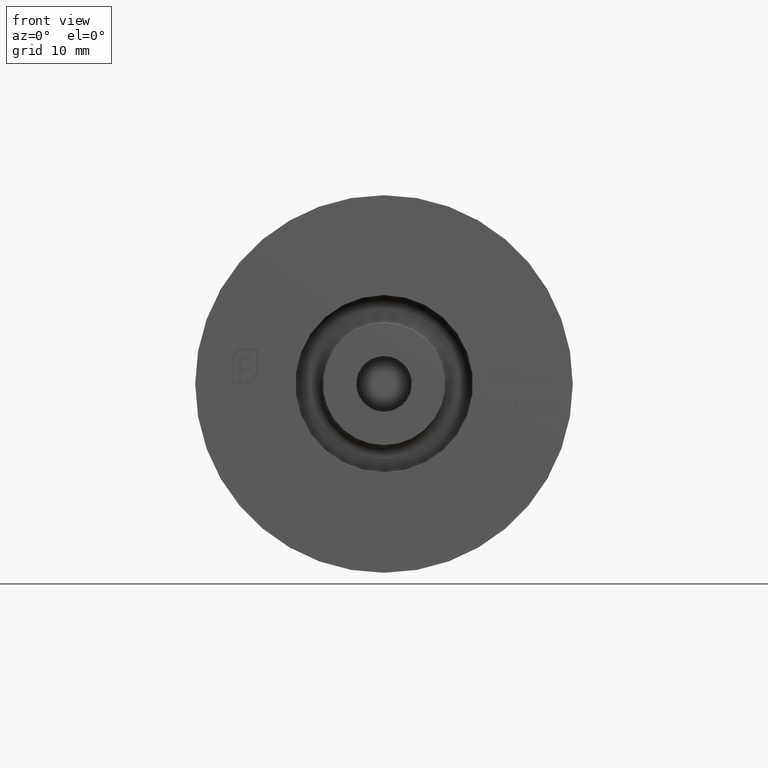
[diagram: clean part render]
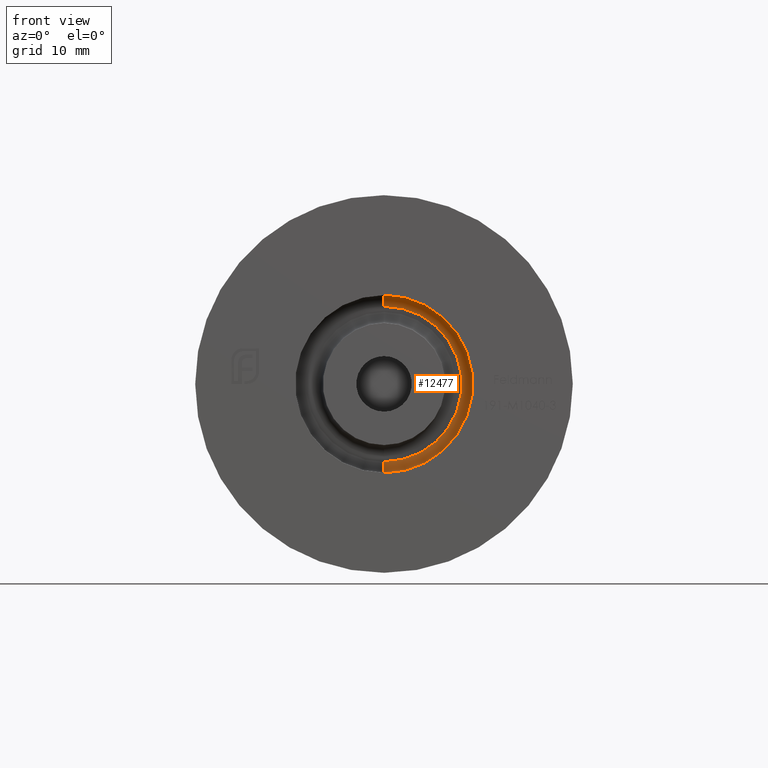
[diagram: same view with one face highlighted and labeled with its STEP entity id]
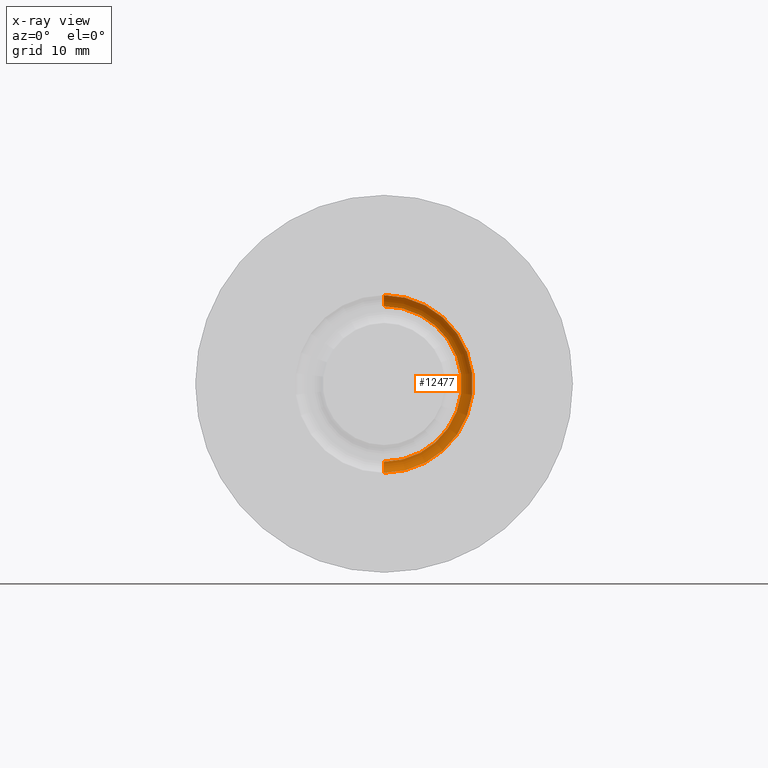
[diagram: x-ray of the same camera — body ghosted, the highlighted face saturated]
A machine part, front view. The second image highlights one B-rep face of the part: STEP entity #12477.
The next image is the same camera in x-ray: the body ghosted, the highlighted face saturated — about 0% of this face is hidden behind the body in this view.
In plain terms, the highlighted toroidal blend (fillet) surface has major radius 7 mm and minor (blend) radius 1 mm.
Its self-contained STEP definition (entity closure, byte-faithful):
#117 = AXIS2_PLACEMENT_3D ( 'NONE', #12798, #8050, #4599 ) ;
#852 = VERTEX_POINT ( 'NONE', #2146 ) ;
#1135 = CIRCLE ( 'NONE', #13315, 1.000000000000000000 ) ;
#1325 = ORIENTED_EDGE ( 'NONE', *, *, #1700, .F. ) ;
#1700 = EDGE_CURVE ( 'NONE', #8599, #7664, #4334, .T. ) ;
#2146 = CARTESIAN_POINT ( 'NONE',  ( 9.184850993605151889E-16, 3.000000000000000000, 7.000000000000001776 ) ) ;
#2192 = CARTESIAN_POINT ( 'NONE',  ( 0.000000000000000000, 2.000000000000000000, -7.000000000000001776 ) ) ;
#2656 = EDGE_CURVE ( 'NONE', #3290, #852, #11985, .T. ) ;
#2705 = CARTESIAN_POINT ( 'NONE',  ( 0.000000000000000000, 3.000000000000000000, -7.000000000000001776 ) ) ;
#3038 = CARTESIAN_POINT ( 'NONE',  ( 0.000000000000000000, 2.000000000000000000, 0.000000000000000000 ) ) ;
#3290 = VERTEX_POINT ( 'NONE', #2705 ) ;
#3764 = AXIS2_PLACEMENT_3D ( 'NONE', #4662, #11695, #4871 ) ;
#4186 = ORIENTED_EDGE ( 'NONE', *, *, #14181, .F. ) ;
#4289 = FACE_OUTER_BOUND ( 'NONE', #5853, .T. ) ;
#4334 = CIRCLE ( 'NONE', #11329, 8.000000000000001776 ) ;
#4599 = DIRECTION ( 'NONE',  ( -1.224646799147353454E-16, 0.000000000000000000, -1.000000000000000000 ) ) ;
#4662 = CARTESIAN_POINT ( 'NONE',  ( 0.000000000000000000, 3.000000000000000000, 0.000000000000000000 ) ) ;
#4871 = DIRECTION ( 'NONE',  ( 0.000000000000000000, 0.000000000000000000, -1.000000000000000000 ) ) ;
#4917 = CARTESIAN_POINT ( 'NONE',  ( 0.000000000000000000, 2.000000000000000000, -8.000000000000001776 ) ) ;
#5811 = DIRECTION ( 'NONE',  ( 0.000000000000000000, 0.000000000000000000, -1.000000000000000000 ) ) ;
#5853 = EDGE_LOOP ( 'NONE', ( #4186, #8640, #14708, #1325 ) ) ;
#5905 = CIRCLE ( 'NONE', #117, 1.000000000000000000 ) ;
#6868 = DIRECTION ( 'NONE',  ( -1.000000000000000000, -0.000000000000000000, -0.000000000000000000 ) ) ;
#7664 = VERTEX_POINT ( 'NONE', #4917 ) ;
#7789 = CARTESIAN_POINT ( 'NONE',  ( 9.797174393178827630E-16, 2.000000000000000000, 8.000000000000001776 ) ) ;
#8050 = DIRECTION ( 'NONE',  ( 1.000000000000000000, 0.000000000000000000, -1.224646799147353207E-16 ) ) ;
#8599 = VERTEX_POINT ( 'NONE', #7789 ) ;
#8640 = ORIENTED_EDGE ( 'NONE', *, *, #2656, .F. ) ;
#8834 = DIRECTION ( 'NONE',  ( 0.000000000000000000, 0.000000000000000000, -1.000000000000000000 ) ) ;
#9007 = EDGE_CURVE ( 'NONE', #3290, #7664, #1135, .T. ) ;
#10248 = AXIS2_PLACEMENT_3D ( 'NONE', #3038, #13429, #8834 ) ;
#11329 = AXIS2_PLACEMENT_3D ( 'NONE', #12718, #12815, #5811 ) ;
#11695 = DIRECTION ( 'NONE',  ( 0.000000000000000000, -1.000000000000000000, 0.000000000000000000 ) ) ;
#11985 = CIRCLE ( 'NONE', #3764, 7.000000000000001776 ) ;
#12477 = ADVANCED_FACE ( 'NONE', ( #4289 ), #13840, .F. ) ;
#12583 = DIRECTION ( 'NONE',  ( 0.000000000000000000, 0.000000000000000000, 1.000000000000000000 ) ) ;
#12718 = CARTESIAN_POINT ( 'NONE',  ( 0.000000000000000000, 2.000000000000000000, 0.000000000000000000 ) ) ;
#12798 = CARTESIAN_POINT ( 'NONE',  ( 8.572527594031474176E-16, 2.000000000000000000, 7.000000000000001776 ) ) ;
#12815 = DIRECTION ( 'NONE',  ( -0.000000000000000000, 1.000000000000000000, -0.000000000000000000 ) ) ;
#13315 = AXIS2_PLACEMENT_3D ( 'NONE', #2192, #6868, #12583 ) ;
#13429 = DIRECTION ( 'NONE',  ( 0.000000000000000000, -1.000000000000000000, 0.000000000000000000 ) ) ;
#13840 = TOROIDAL_SURFACE ( 'NONE', #10248, 7.000000000000001776, 1.000000000000000000 ) ;
#14181 = EDGE_CURVE ( 'NONE', #852, #8599, #5905, .T. ) ;
#14708 = ORIENTED_EDGE ( 'NONE', *, *, #9007, .T. ) ;